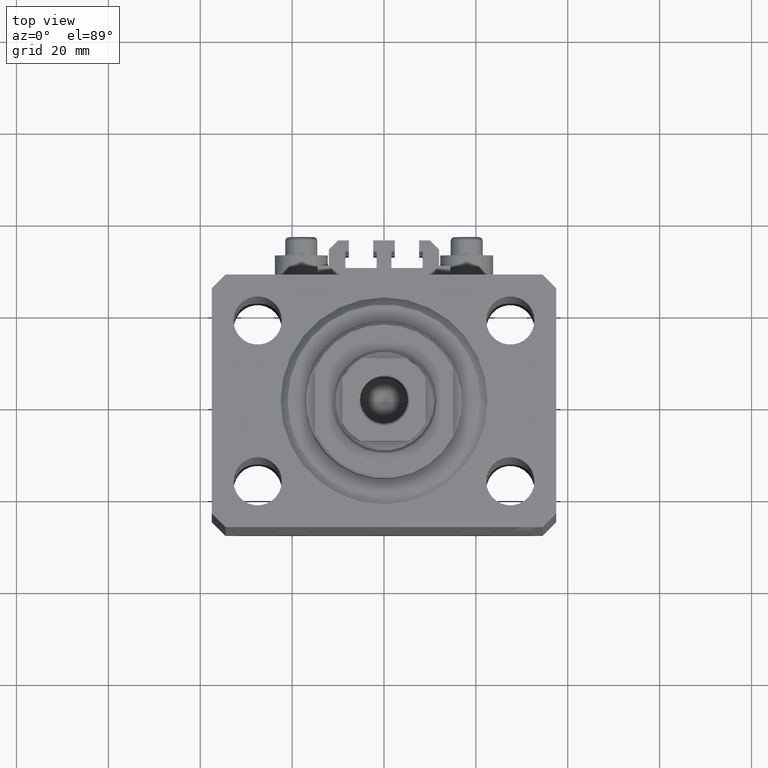
[diagram: clean part render]
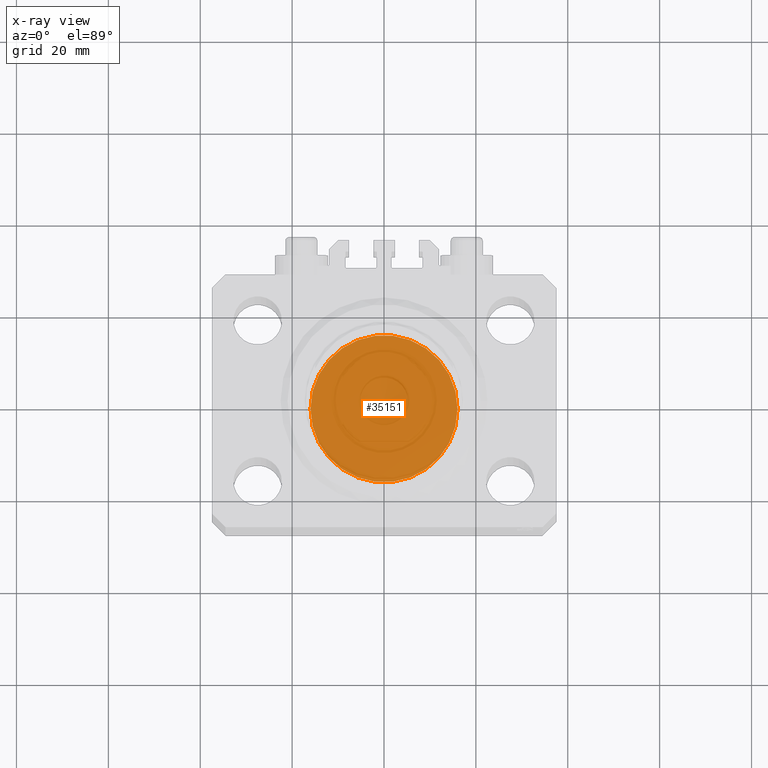
[diagram: x-ray — body ghosted, one internal face saturated and labeled with its STEP entity id]
A machine part, top view, then the same camera in x-ray: the body is ghosted and one INTERNAL B-rep face — a face not visible from any outside direction — is saturated and labeled: STEP entity #35151.
In plain terms, the highlighted planar face has unit normal (0, 0, 1).
Its self-contained STEP definition (entity closure, byte-faithful):
#2123 = EDGE_LOOP ( 'NONE', ( #37621, #5188 ) ) ;
#3400 = CARTESIAN_POINT ( 'NONE',  ( 16.00000000000000000, 1.959434878635765131E-15, 0.000000000000000000 ) ) ;
#5188 = ORIENTED_EDGE ( 'NONE', *, *, #9265, .F. ) ;
#5233 = DIRECTION ( 'NONE',  ( 0.000000000000000000, 0.000000000000000000, 1.000000000000000000 ) ) ;
#6175 = CARTESIAN_POINT ( 'NONE',  ( 0.000000000000000000, 0.000000000000000000, 0.000000000000000000 ) ) ;
#6955 = DIRECTION ( 'NONE',  ( 1.000000000000000000, 0.000000000000000000, -0.000000000000000000 ) ) ;
#7840 = DIRECTION ( 'NONE',  ( 1.000000000000000000, 0.000000000000000000, 0.000000000000000000 ) ) ;
#9265 = EDGE_CURVE ( 'NONE', #42874, #16324, #30450, .T. ) ;
#10552 = PLANE ( 'NONE',  #19020 ) ;
#11803 = CARTESIAN_POINT ( 'NONE',  ( -16.00000000000000000, 0.000000000000000000, 0.000000000000000000 ) ) ;
#16324 = VERTEX_POINT ( 'NONE', #11803 ) ;
#19020 = AXIS2_PLACEMENT_3D ( 'NONE', #33293, #39762, #6955 ) ;
#23995 = CIRCLE ( 'NONE', #36247, 16.00000000000000000 ) ;
#30450 = CIRCLE ( 'NONE', #36579, 16.00000000000000000 ) ;
#33293 = CARTESIAN_POINT ( 'NONE',  ( 0.000000000000000000, 0.000000000000000000, 0.000000000000000000 ) ) ;
#34214 = DIRECTION ( 'NONE',  ( 1.000000000000000000, 0.000000000000000000, 0.000000000000000000 ) ) ;
#35151 = ADVANCED_FACE ( 'NONE', ( #35936 ), #10552, .F. ) ;
#35625 = DIRECTION ( 'NONE',  ( 0.000000000000000000, 0.000000000000000000, 1.000000000000000000 ) ) ;
#35936 = FACE_OUTER_BOUND ( 'NONE', #2123, .T. ) ;
#36247 = AXIS2_PLACEMENT_3D ( 'NONE', #6175, #35625, #7840 ) ;
#36579 = AXIS2_PLACEMENT_3D ( 'NONE', #45211, #5233, #34214 ) ;
#37621 = ORIENTED_EDGE ( 'NONE', *, *, #44468, .F. ) ;
#39762 = DIRECTION ( 'NONE',  ( 0.000000000000000000, 0.000000000000000000, 1.000000000000000000 ) ) ;
#42874 = VERTEX_POINT ( 'NONE', #3400 ) ;
#44468 = EDGE_CURVE ( 'NONE', #16324, #42874, #23995, .T. ) ;
#45211 = CARTESIAN_POINT ( 'NONE',  ( 0.000000000000000000, 0.000000000000000000, 0.000000000000000000 ) ) ;